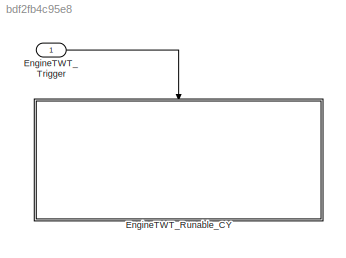
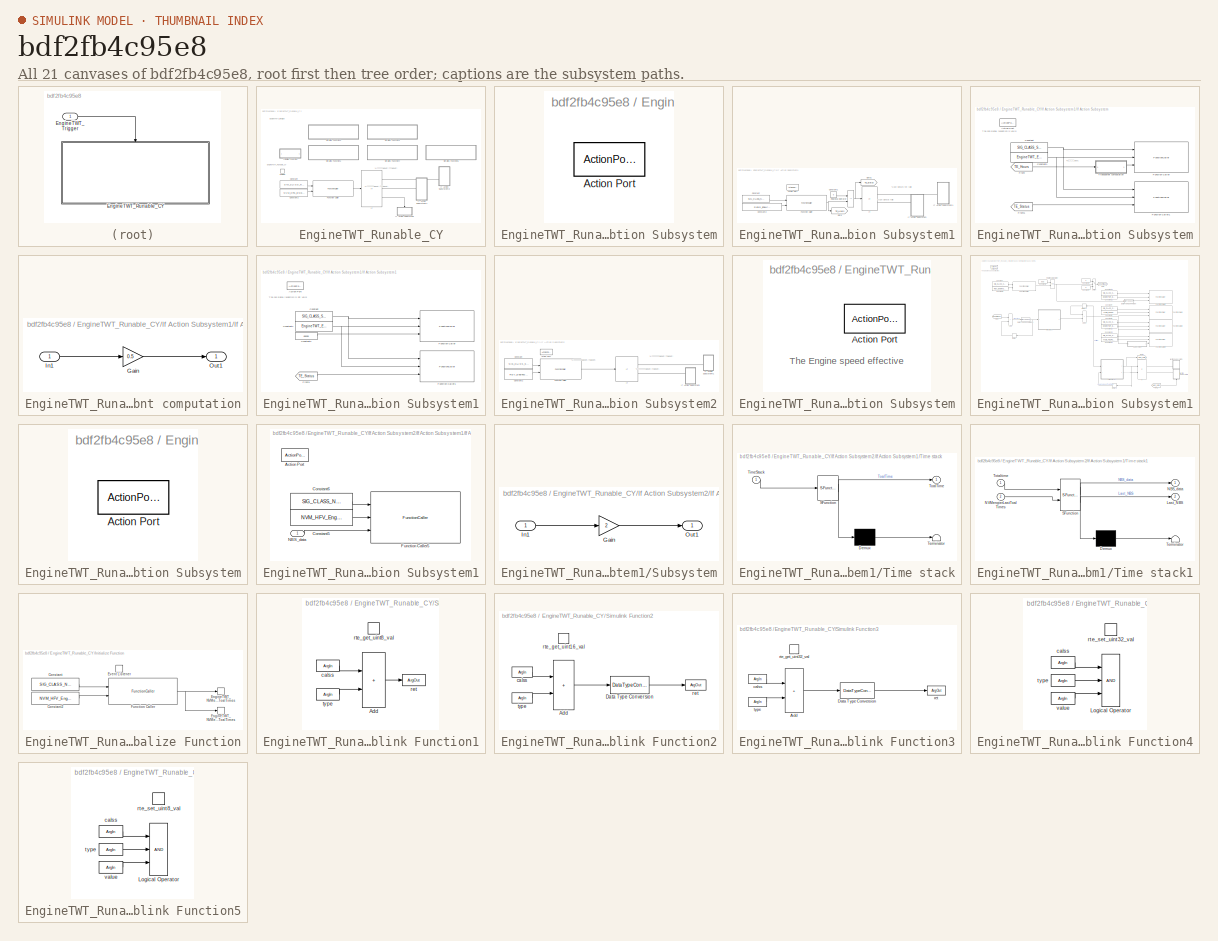
[diagram: thumbnail index - all 21 canvases of the model, root first then tree order]
MODEL slx_bdf2fb4c95e8
KIND model
CONFIG AbsTol = auto
CONFIG EnableMultiTasking = off
CONFIG FixedStep = 0.005
CONFIG MaxStep = auto
CONFIG MinStep = auto
CONFIG RelTol = 1e-3
CONFIG SampleTimeConstraint = Unconstrained
CONFIG SolverName = FixedStepDiscrete
CONFIG StartTime = 0.0
CONFIG StopTime = inf
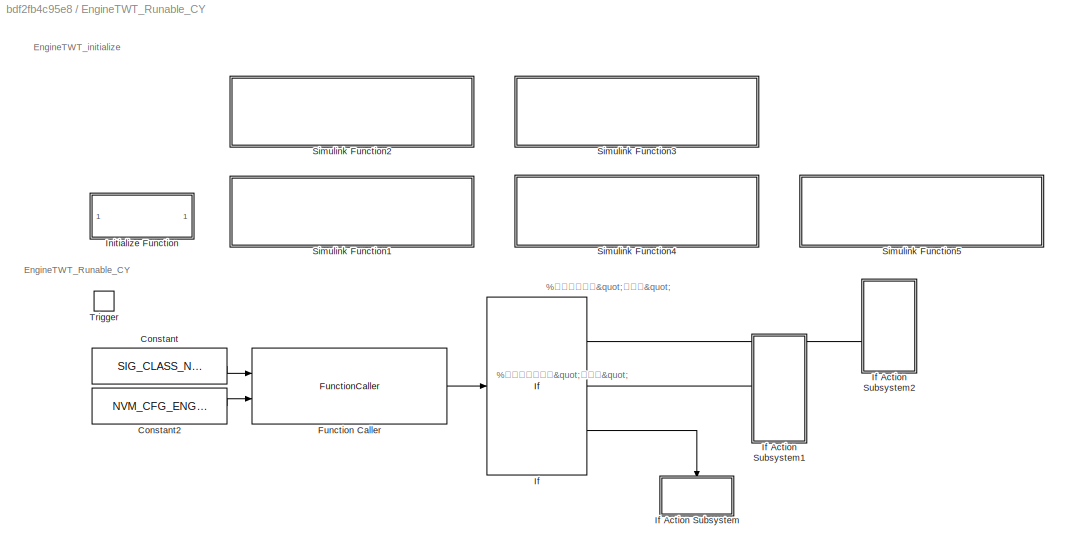
BLOCK [SubSystem] EngineTWT_Runable_CY
  Ports = [0, 0, 0, 1]
  RequestExecContextInheritance = off
BLOCK [Constant] EngineTWT_Runable_CY/Constant
  OutDataTypeStr = int8
  Value = SIG_CLASS_NVM_CFG
BLOCK [Constant] EngineTWT_Runable_CY/Constant2
  OutDataTypeStr = int8
  Value = NVM_CFG_ENG_TYPE
BLOCK [FunctionCaller] EngineTWT_Runable_CY/Function Caller
  FunctionPrototype = ret = rte_get_uint16_val(calss,type)
  InputArgumentSpecifications = int8(1),int8(1)
  OutputArgumentSpecifications = int16(1)
  Ports = [2, 1]
BLOCK [If] EngineTWT_Runable_CY/If
  ElseIfExpressions = u1 == 213
  IfExpression = u1 == 214
  Ports = [1, 3]
BLOCK [SubSystem] EngineTWT_Runable_CY/If Action Subsystem
  Ports = [0, 0, 0, 0, 0, 0, 0, 1]
  RequestExecContextInheritance = off
  TreatAsAtomicUnit = on
BLOCK [ActionPort] EngineTWT_Runable_CY/If Action Subsystem/Action Port
  ActionPortLabel = else
BLOCK [SubSystem] EngineTWT_Runable_CY/If Action Subsystem1
  NameLocation = right
  Ports = [0, 0, 0, 0, 0, 0, 0, 1]
  RequestExecContextInheritance = off
  TreatAsAtomicUnit = on
BLOCK [ActionPort] EngineTWT_Runable_CY/If Action Subsystem1/Action Port
  ActionPortLabel = elseif(u1 == 213)
BLOCK [Constant] EngineTWT_Runable_CY/If Action Subsystem1/Constant
  OutDataTypeStr = int8
  Value = SIG_CLASS_NVM_CFG
BLOCK [Constant] EngineTWT_Runable_CY/If Action Subsystem1/Constant1
  Value = 0
BLOCK [Constant] EngineTWT_Runable_CY/If Action Subsystem1/Constant2
  OutDataTypeStr = int8
  Value = RXSIG_EngHrRev_Total_engine_hours
BLOCK [FunctionCaller] EngineTWT_Runable_CY/If Action Subsystem1/Function Caller
  FunctionPrototype = ret = rte_get_uint32_val(calss,type)
  InputArgumentSpecifications = int8(1),int8(1)
  OutputArgumentSpecifications = int32(1)
  Ports = [2, 1]
BLOCK [Goto] EngineTWT_Runable_CY/If Action Subsystem1/Goto
  GotoTag = TE_Hours
BLOCK [Goto] EngineTWT_Runable_CY/If Action Subsystem1/Goto1
  GotoTag = TE_Status
BLOCK [If] EngineTWT_Runable_CY/If Action Subsystem1/If
  IfExpression = u1 == 0
  Ports = [1, 2]
BLOCK [SubSystem] EngineTWT_Runable_CY/If Action Subsystem1/If Action Subsystem
  NameLocation = right
  Ports = [0, 0, 0, 0, 0, 0, 0, 1]
  RequestExecContextInheritance = off
  TreatAsAtomicUnit = on
BLOCK [ActionPort] EngineTWT_Runable_CY/If Action Subsystem1/If Action Subsystem/Action Port
  ActionPortLabel = else
BLOCK [Constant] EngineTWT_Runable_CY/If Action Subsystem1/If Action Subsystem/Constant
  OutDataTypeStr = int8
  Value = SIG_CLASS_SWC
BLOCK [Constant] EngineTWT_Runable_CY/If Action Subsystem1/If Action Subsystem/Constant1
  OutDataTypeStr = int16
  Value = EngineTWT_Enginerunhours
BLOCK [From] EngineTWT_Runable_CY/If Action Subsystem1/If Action Subsystem/From
  GotoTag = TE_Hours
BLOCK [From] EngineTWT_Runable_CY/If Action Subsystem1/If Action Subsystem/From1
  GotoTag = TE_Status
BLOCK [FunctionCaller] EngineTWT_Runable_CY/If Action Subsystem1/If Action Subsystem/Function Caller
  FunctionPrototype = rte_set_uint32_val(calss,type,value)
  InputArgumentSpecifications = int8(1),int16(1),int32(1)
  Ports = [3]
BLOCK [FunctionCaller] EngineTWT_Runable_CY/If Action Subsystem1/If Action Subsystem/Function Caller1
  FunctionPrototype = rte_set_uint32_val(calss,type,value)
  InputArgumentSpecifications = int8(1),int16(1),int32(1)
  Ports = [3]
BLOCK [SubSystem] EngineTWT_Runable_CY/If Action Subsystem1/If Action Subsystem/Transparent computation
  Ports = [1, 1]
  RequestExecContextInheritance = off
BLOCK [Gain] EngineTWT_Runable_CY/If Action Subsystem1/If Action Subsystem/Transparent computation/Gain
  Gain = 0.5
  OutDataTypeStr = int32
  ParamDataTypeStr = int32
BLOCK [Inport] EngineTWT_Runable_CY/If Action Subsystem1/If Action Subsystem/Transparent computation/In1
BLOCK [Outport] EngineTWT_Runable_CY/If Action Subsystem1/If Action Subsystem/Transparent computation/Out1
BLOCK [SubSystem] EngineTWT_Runable_CY/If Action Subsystem1/If Action Subsystem1
  NameLocation = right
  Ports = [0, 0, 0, 0, 0, 0, 0, 1]
  RequestExecContextInheritance = off
  TreatAsAtomicUnit = on
BLOCK [ActionPort] EngineTWT_Runable_CY/If Action Subsystem1/If Action Subsystem1/Action Port
  ActionPortLabel = if(u1 == 0)
BLOCK [Constant] EngineTWT_Runable_CY/If Action Subsystem1/If Action Subsystem1/Constant
  OutDataTypeStr = int8
  Value = SIG_CLASS_SWC
BLOCK [Constant] EngineTWT_Runable_CY/If Action Subsystem1/If Action Subsystem1/Constant1
  OutDataTypeStr = int16
  Value = EngineTWT_Enginerunhours
BLOCK [Constant] EngineTWT_Runable_CY/If Action Subsystem1/If Action Subsystem1/Constant2
  OutDataTypeStr = int32
  Value = 65535
BLOCK [From] EngineTWT_Runable_CY/If Action Subsystem1/If Action Subsystem1/From1
  GotoTag = TE_Status
BLOCK [FunctionCaller] EngineTWT_Runable_CY/If Action Subsystem1/If Action Subsystem1/Function Caller
  FunctionPrototype = rte_set_uint32_val(calss,type,value)
  InputArgumentSpecifications = int8(1),int16(1),int32(1)
  Ports = [3]
BLOCK [FunctionCaller] EngineTWT_Runable_CY/If Action Subsystem1/If Action Subsystem1/Function Caller1
  FunctionPrototype = rte_set_uint8_val(calss,type,value)
  InputArgumentSpecifications = int8(1),int16(1),int8(1)
  Ports = [3]
BLOCK [RelationalOperator] EngineTWT_Runable_CY/If Action Subsystem1/Relational Operator
  InputSameDT = off
  Operator = ~=
  OutDataTypeStr = boolean
  Ports = [2, 1]
  RndMeth = Simplest
BLOCK [SubSystem] EngineTWT_Runable_CY/If Action Subsystem2
  NameLocation = right
  Ports = [0, 0, 0, 0, 0, 0, 0, 1]
  RequestExecContextInheritance = off
  TreatAsAtomicUnit = on
BLOCK [ActionPort] EngineTWT_Runable_CY/If Action Subsystem2/Action Port
  ActionPortLabel = if(u1 == 214)
BLOCK [Constant] EngineTWT_Runable_CY/If Action Subsystem2/Constant
  OutDataTypeStr = int8
  Value = SIG_CLASS_SWC
BLOCK [Constant] EngineTWT_Runable_CY/If Action Subsystem2/Constant2
  OutDataTypeStr = int8
  Value = REV_EngineSpeedState
BLOCK [FunctionCaller] EngineTWT_Runable_CY/If Action Subsystem2/Function Caller
  FunctionPrototype = ret = rte_get_uint8_val(calss,type)
  InputArgumentSpecifications = int8(1),int8(1)
  OutputArgumentSpecifications = int8(1)
  Ports = [2, 1]
BLOCK [If] EngineTWT_Runable_CY/If Action Subsystem2/If
  IfExpression = u1 == 1
  Ports = [1, 2]
BLOCK [SubSystem] EngineTWT_Runable_CY/If Action Subsystem2/If Action Subsystem
  NameLocation = right
  Ports = [0, 0, 0, 0, 0, 0, 0, 1]
  RequestExecContextInheritance = off
  TreatAsAtomicUnit = on
BLOCK [ActionPort] EngineTWT_Runable_CY/If Action Subsystem2/If Action Subsystem/Action Port
  ActionPortLabel = else
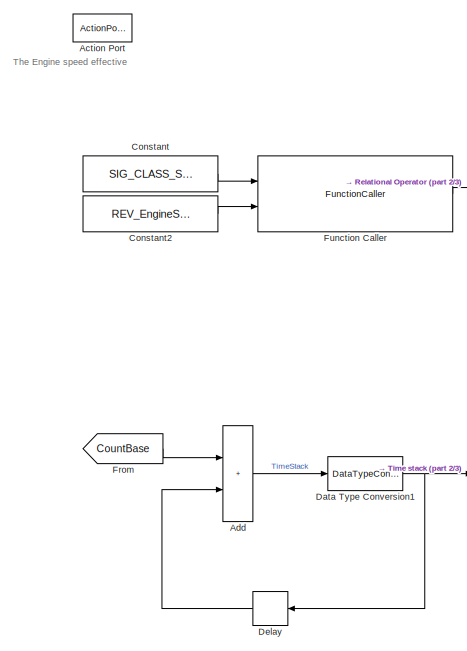
[diagram: EngineTWT_Runable_CY/If Action Subsystem2/If Action Subsystem1 - part 1/3, top left region]
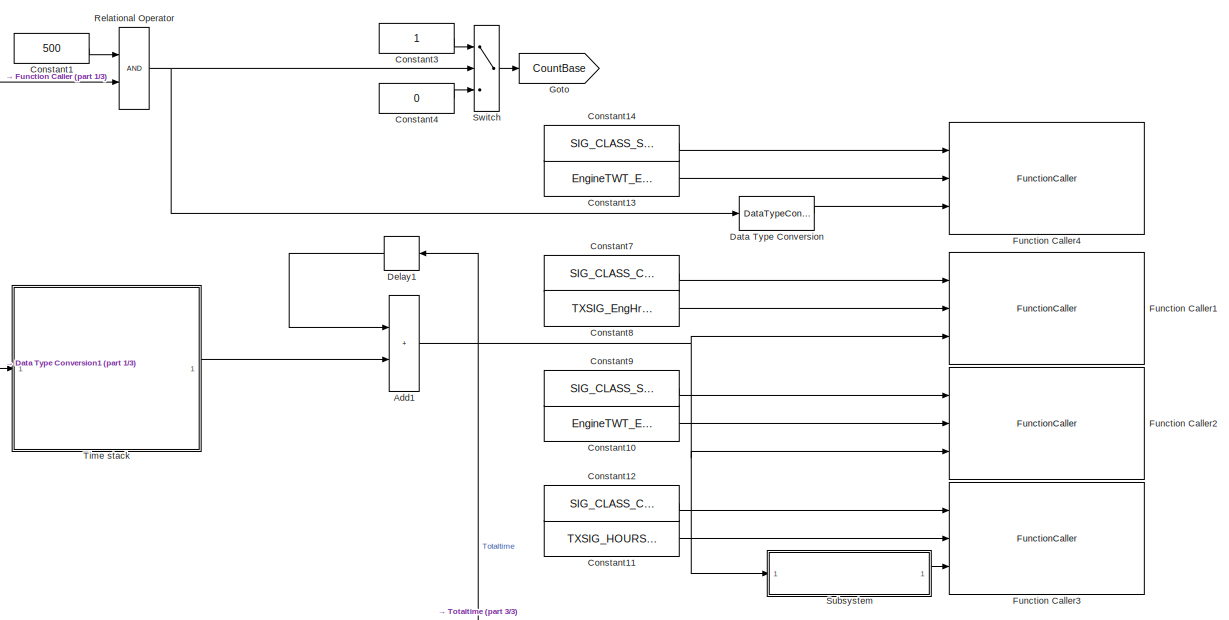
[diagram: EngineTWT_Runable_CY/If Action Subsystem2/If Action Subsystem1 - part 2/3, central region]
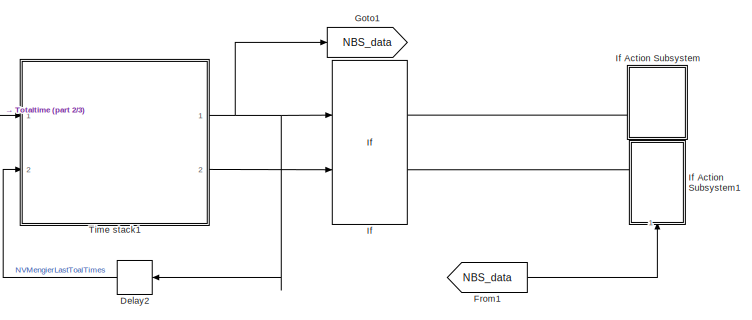
[diagram: EngineTWT_Runable_CY/If Action Subsystem2/If Action Subsystem1 - part 3/3, bottom right region]
BLOCK [SubSystem] EngineTWT_Runable_CY/If Action Subsystem2/If Action Subsystem1
  NameLocation = right
  Ports = [0, 0, 0, 0, 0, 0, 0, 1]
  RequestExecContextInheritance = off
  TreatAsAtomicUnit = on
BLOCK [ActionPort] EngineTWT_Runable_CY/If Action Subsystem2/If Action Subsystem1/Action Port
  ActionPortLabel = if(u1 == 1)
BLOCK [Sum] EngineTWT_Runable_CY/If Action Subsystem2/If Action Subsystem1/Add
  IconShape = rectangular
  Ports = [2, 1]
BLOCK [Sum] EngineTWT_Runable_CY/If Action Subsystem2/If Action Subsystem1/Add1
  IconShape = rectangular
  Ports = [2, 1]
BLOCK [Constant] EngineTWT_Runable_CY/If Action Subsystem2/If Action Subsystem1/Constant
  OutDataTypeStr = int8
  Value = SIG_CLASS_SWC
BLOCK [Constant] EngineTWT_Runable_CY/If Action Subsystem2/If Action Subsystem1/Constant1
  Value = 500
BLOCK [Constant] EngineTWT_Runable_CY/If Action Subsystem2/If Action Subsystem1/Constant10
  OutDataTypeStr = int16
  Value = EngineTWT_Enginerunhours
BLOCK [Constant] EngineTWT_Runable_CY/If Action Subsystem2/If Action Subsystem1/Constant11
  OutDataTypeStr = int16
  Value = TXSIG_HOURS_EGR_EngineTotalHoursofOperation
BLOCK [Constant] EngineTWT_Runable_CY/If Action Subsystem2/If Action Subsystem1/Constant12
  OutDataTypeStr = int8
  Value = SIG_CLASS_COMTX
BLOCK [Constant] EngineTWT_Runable_CY/If Action Subsystem2/If Action Subsystem1/Constant13
  OutDataTypeStr = int16
  Value = EngineTWT_EnginerunhoursState
BLOCK [Constant] EngineTWT_Runable_CY/If Action Subsystem2/If Action Subsystem1/Constant14
  OutDataTypeStr = int8
  Value = SIG_CLASS_SWC
BLOCK [Constant] EngineTWT_Runable_CY/If Action Subsystem2/If Action Subsystem1/Constant2
  OutDataTypeStr = int8
  Value = REV_EngineSpeed
BLOCK [Constant] EngineTWT_Runable_CY/If Action Subsystem2/If Action Subsystem1/Constant3
BLOCK [Constant] EngineTWT_Runable_CY/If Action Subsystem2/If Action Subsystem1/Constant4
  Value = 0
BLOCK [Constant] EngineTWT_Runable_CY/If Action Subsystem2/If Action Subsystem1/Constant7
  OutDataTypeStr = int8
  Value = SIG_CLASS_COMTX
BLOCK [Constant] EngineTWT_Runable_CY/If Action Subsystem2/If Action Subsystem1/Constant8
  OutDataTypeStr = int16
  Value = TXSIG_EngHrRev_EGR_Total_engine_hours
BLOCK [Constant] EngineTWT_Runable_CY/If Action Subsystem2/If Action Subsystem1/Constant9
  OutDataTypeStr = int8
  Value = SIG_CLASS_SWC
BLOCK [DataTypeConversion] EngineTWT_Runable_CY/If Action Subsystem2/If Action Subsystem1/Data Type Conversion
  OutDataTypeStr = int8
  RndMeth = Floor
  SaturateOnIntegerOverflow = off
BLOCK [DataTypeConversion] EngineTWT_Runable_CY/If Action Subsystem2/If Action Subsystem1/Data Type Conversion1
  OutDataTypeStr = uint8
  RndMeth = Floor
  SaturateOnIntegerOverflow = off
BLOCK [Delay] EngineTWT_Runable_CY/If Action Subsystem2/If Action Subsystem1/Delay
  DelayLength = 1
  InputPortMap = u0
  NameLocation = top
  Ports = [1, 1]
BLOCK [Delay] EngineTWT_Runable_CY/If Action Subsystem2/If Action Subsystem1/Delay1
  DelayLength = 1
  InputPortMap = u0
  NameLocation = top
  Ports = [1, 1]
  StateName = EngineTWT_NVMengierToalTimes
BLOCK [Delay] EngineTWT_Runable_CY/If Action Subsystem2/If Action Subsystem1/Delay2
  DelayLength = 1
  InputPortMap = u0
  NameLocation = top
  Ports = [1, 1]
  StateMustResolveToSignalObject = on
  StateName = EngineTWT_NVMengierLastToalTimes
BLOCK [From] EngineTWT_Runable_CY/If Action Subsystem2/If Action Subsystem1/From
  GotoTag = CountBase
BLOCK [From] EngineTWT_Runable_CY/If Action Subsystem2/If Action Subsystem1/From1
  GotoTag = NBS_data
BLOCK [FunctionCaller] EngineTWT_Runable_CY/If Action Subsystem2/If Action Subsystem1/Function Caller
  FunctionPrototype = ret = rte_get_uint16_val(calss,type)
  InputArgumentSpecifications = int8(1),int8(1)
  OutputArgumentSpecifications = int16(1)
  Ports = [2, 1]
BLOCK [FunctionCaller] EngineTWT_Runable_CY/If Action Subsystem2/If Action Subsystem1/Function Caller1
  FunctionPrototype = rte_set_uint32_val(calss,type,value)
  InputArgumentSpecifications = int8(1),int16(1),int32(1)
  Ports = [3]
BLOCK [FunctionCaller] EngineTWT_Runable_CY/If Action Subsystem2/If Action Subsystem1/Function Caller2
  FunctionPrototype = rte_set_uint32_val(calss,type,value)
  InputArgumentSpecifications = int8(1),int16(1),int32(1)
  Ports = [3]
BLOCK [FunctionCaller] EngineTWT_Runable_CY/If Action Subsystem2/If Action Subsystem1/Function Caller3
  FunctionPrototype = rte_set_uint32_val(calss,type,value)
  InputArgumentSpecifications = int8(1),int16(1),int32(1)
  Ports = [3]
BLOCK [FunctionCaller] EngineTWT_Runable_CY/If Action Subsystem2/If Action Subsystem1/Function Caller4
  FunctionPrototype = rte_set_uint8_val(calss,type,value)
  InputArgumentSpecifications = int8(1),int16(1),int8(1)
  Ports = [3]
BLOCK [Goto] EngineTWT_Runable_CY/If Action Subsystem2/If Action Subsystem1/Goto
  GotoTag = CountBase
BLOCK [Goto] EngineTWT_Runable_CY/If Action Subsystem2/If Action Subsystem1/Goto1
  GotoTag = NBS_data
BLOCK [If] EngineTWT_Runable_CY/If Action Subsystem2/If Action Subsystem1/If
  IfExpression = u1 == u2
  NumInputs = 2
  Ports = [2, 2]
BLOCK [SubSystem] EngineTWT_Runable_CY/If Action Subsystem2/If Action Subsystem1/If Action Subsystem
  NameLocation = right
  Ports = [0, 0, 0, 0, 0, 0, 0, 1]
  RequestExecContextInheritance = off
  TreatAsAtomicUnit = on
BLOCK [ActionPort] EngineTWT_Runable_CY/If Action Subsystem2/If Action Subsystem1/If Action Subsystem/Action Port
  ActionPortLabel = if(u1 == u2)
BLOCK [SubSystem] EngineTWT_Runable_CY/If Action Subsystem2/If Action Subsystem1/If Action Subsystem1
  NameLocation = right
  Ports = [1, 0, 0, 0, 0, 0, 0, 1]
  RequestExecContextInheritance = off
  TreatAsAtomicUnit = on
BLOCK [ActionPort] EngineTWT_Runable_CY/If Action Subsystem2/If Action Subsystem1/If Action Subsystem1/Action Port
  ActionPortLabel = else
BLOCK [Constant] EngineTWT_Runable_CY/If Action Subsystem2/If Action Subsystem1/If Action Subsystem1/Constant5
  OutDataTypeStr = int16
  Value = NVM_HFV_Enginerunhours
BLOCK [Constant] EngineTWT_Runable_CY/If Action Subsystem2/If Action Subsystem1/If Action Subsystem1/Constant6
  OutDataTypeStr = int8
  Value = SIG_CLASS_NVM
BLOCK [FunctionCaller] EngineTWT_Runable_CY/If Action Subsystem2/If Action Subsystem1/If Action Subsystem1/Function Caller5
  FunctionPrototype = rte_set_uint32_val(calss,type,value)
  InputArgumentSpecifications = int8(1),int16(1),int32(1)
  Ports = [3]
BLOCK [Inport] EngineTWT_Runable_CY/If Action Subsystem2/If Action Subsystem1/If Action Subsystem1/NBS_data
BLOCK [RelationalOperator] EngineTWT_Runable_CY/If Action Subsystem2/If Action Subsystem1/Relational Operator
  InputSameDT = off
  OutDataTypeStr = boolean
  Ports = [2, 1]
  RndMeth = Simplest
BLOCK [SubSystem] EngineTWT_Runable_CY/If Action Subsystem2/If Action Subsystem1/Subsystem
  Ports = [1, 1]
  RequestExecContextInheritance = off
BLOCK [Gain] EngineTWT_Runable_CY/If Action Subsystem2/If Action Subsystem1/Subsystem/Gain
  Gain = 2
  OutDataTypeStr = int32
BLOCK [Inport] EngineTWT_Runable_CY/If Action Subsystem2/If Action Subsystem1/Subsystem/In1
BLOCK [Outport] EngineTWT_Runable_CY/If Action Subsystem2/If Action Subsystem1/Subsystem/Out1
BLOCK [Switch] EngineTWT_Runable_CY/If Action Subsystem2/If Action Subsystem1/Switch
  Criteria = u2 ~= 0
  InputSameDT = off
  SaturateOnIntegerOverflow = off
BLOCK [SubSystem] EngineTWT_Runable_CY/If Action Subsystem2/If Action Subsystem1/Time stack
  ErrorFcn = Stateflow.Translate.translate
  PermitHierarchicalResolution = ExplicitOnly
  Ports = [1, 1]
  RequestExecContextInheritance = off
  SFBlockType = Chart
  TreatAsAtomicUnit = on
BLOCK [Demux] EngineTWT_Runable_CY/If Action Subsystem2/If Action Subsystem1/Time stack/ Demux 
  Outputs = 1
  Ports = [1, 1]
BLOCK [S-Function] EngineTWT_Runable_CY/If Action Subsystem2/If Action Subsystem1/Time stack/ SFunction 
  EnableBusSupport = on
  FunctionName = sf_sfun
  PortCounts = [1 2]
  Ports = [1, 2]
  SFcnIsStateOwnerBlock = off
  SFunctionDeploymentMode = off
  Tag = Stateflow S-Function 3
BLOCK [Terminator] EngineTWT_Runable_CY/If Action Subsystem2/If Action Subsystem1/Time stack/ Terminator 
BLOCK [Inport] EngineTWT_Runable_CY/If Action Subsystem2/If Action Subsystem1/Time stack/TimeStack
BLOCK [Outport] EngineTWT_Runable_CY/If Action Subsystem2/If Action Subsystem1/Time stack/ToalTime
BLOCK [SubSystem] EngineTWT_Runable_CY/If Action Subsystem2/If Action Subsystem1/Time stack1
  ErrorFcn = Stateflow.Translate.translate
  PermitHierarchicalResolution = ExplicitOnly
  Ports = [2, 2]
  RequestExecContextInheritance = off
  SFBlockType = Chart
  TreatAsAtomicUnit = on
BLOCK [Demux] EngineTWT_Runable_CY/If Action Subsystem2/If Action Subsystem1/Time stack1/ Demux 
  Outputs = 1
  Ports = [1, 1]
BLOCK [S-Function] EngineTWT_Runable_CY/If Action Subsystem2/If Action Subsystem1/Time stack1/ SFunction 
  EnableBusSupport = on
  FunctionName = sf_sfun
  PortCounts = [2 3]
  Ports = [2, 3]
  SFcnIsStateOwnerBlock = off
  SFunctionDeploymentMode = off
  Tag = Stateflow S-Function 4
BLOCK [Terminator] EngineTWT_Runable_CY/If Action Subsystem2/If Action Subsystem1/Time stack1/ Terminator 
BLOCK [Outport] EngineTWT_Runable_CY/If Action Subsystem2/If Action Subsystem1/Time stack1/Last_NBS
  Port = 2
BLOCK [Outport] EngineTWT_Runable_CY/If Action Subsystem2/If Action Subsystem1/Time stack1/NBS_data
BLOCK [Inport] EngineTWT_Runable_CY/If Action Subsystem2/If Action Subsystem1/Time stack1/NVMengierLastToalTimes
  Port = 2
BLOCK [Inport] EngineTWT_Runable_CY/If Action Subsystem2/If Action Subsystem1/Time stack1/Totaltime
BLOCK [SubSystem] EngineTWT_Runable_CY/Initialize Function
  Ports = []
  RequestExecContextInheritance = off
  TreatAsAtomicUnit = on
BLOCK [Constant] EngineTWT_Runable_CY/Initialize Function/Constant
  OutDataTypeStr = int8
  Value = SIG_CLASS_NVM
  VectorParams1D = off
BLOCK [Constant] EngineTWT_Runable_CY/Initialize Function/Constant2
  OutDataTypeStr = int8
  Value = NVM_HFV_Enginerunhours
BLOCK [StateWriter] EngineTWT_Runable_CY/Initialize Function/EngineTWT_NVMengierLastToalTimes
  StateName = EngineTWT_NVMengierLastToalTimes
  StateOwnerBlock = ../../If Action Subsystem2/If Action Subsystem1/Delay2
BLOCK [StateWriter] EngineTWT_Runable_CY/Initialize Function/EngineTWT_NVMengierToalTimes
  StateName = EngineTWT_NVMengierToalTimes
  StateOwnerBlock = ../../If Action Subsystem2/If Action Subsystem1/Delay1
BLOCK [EventListener] EngineTWT_Runable_CY/Initialize Function/Event Listener
  DisableCoverage = on
  EventName = reset
BLOCK [FunctionCaller] EngineTWT_Runable_CY/Initialize Function/Function Caller
  FunctionPrototype = ret = rte_get_uint32_val(calss,type)
  InputArgumentSpecifications = int8(1),int8(1)
  OutputArgumentSpecifications = int32(1)
  Ports = [2, 1]
BLOCK [SubSystem] EngineTWT_Runable_CY/Simulink Function1
  Ports = [0, 0, 0, 1]
  RequestExecContextInheritance = off
  TreatAsAtomicUnit = on
BLOCK [Sum] EngineTWT_Runable_CY/Simulink Function1/Add
  IconShape = rectangular
  Ports = [2, 1]
BLOCK [ArgIn] EngineTWT_Runable_CY/Simulink Function1/calss
  ArgumentName = calss
  DisableCoverage = on
  OutDataTypeStr = int8
BLOCK [ArgOut] EngineTWT_Runable_CY/Simulink Function1/ret
  ArgumentName = ret
  DisableCoverage = on
  OutDataTypeStr = int8
BLOCK [TriggerPort] EngineTWT_Runable_CY/Simulink Function1/rte_get_uint8_val
  FunctionName = rte_get_uint8_val
  FunctionVisibility = scoped
  IsSimulinkFunction = on
  Ports = []
  StatesWhenEnabling = held
  TriggerType = function-call
  VariantControl = (inherit)
BLOCK [ArgIn] EngineTWT_Runable_CY/Simulink Function1/type
  ArgumentName = type
  OutDataTypeStr = int8
  Port = 2
BLOCK [SubSystem] EngineTWT_Runable_CY/Simulink Function2
  Ports = [0, 0, 0, 1]
  RequestExecContextInheritance = off
  TreatAsAtomicUnit = on
BLOCK [Sum] EngineTWT_Runable_CY/Simulink Function2/Add
  IconShape = rectangular
  Ports = [2, 1]
BLOCK [DataTypeConversion] EngineTWT_Runable_CY/Simulink Function2/Data Type Conversion
  OutDataTypeStr = int16
  RndMeth = Floor
  SaturateOnIntegerOverflow = off
BLOCK [ArgIn] EngineTWT_Runable_CY/Simulink Function2/calss
  ArgumentName = calss
  DisableCoverage = on
  OutDataTypeStr = int8
BLOCK [ArgOut] EngineTWT_Runable_CY/Simulink Function2/ret
  ArgumentName = ret
  DisableCoverage = on
  OutDataTypeStr = int16
BLOCK [TriggerPort] EngineTWT_Runable_CY/Simulink Function2/rte_get_uint16_val
  FunctionName = rte_get_uint16_val
  FunctionVisibility = scoped
  IsSimulinkFunction = on
  Ports = []
  StatesWhenEnabling = held
  TriggerType = function-call
  VariantControl = (inherit)
BLOCK [ArgIn] EngineTWT_Runable_CY/Simulink Function2/type
  ArgumentName = type
  OutDataTypeStr = int8
  Port = 2
BLOCK [SubSystem] EngineTWT_Runable_CY/Simulink Function3
  Ports = [0, 0, 0, 1]
  RequestExecContextInheritance = off
  TreatAsAtomicUnit = on
BLOCK [Sum] EngineTWT_Runable_CY/Simulink Function3/Add
  IconShape = rectangular
  Ports = [2, 1]
BLOCK [DataTypeConversion] EngineTWT_Runable_CY/Simulink Function3/Data Type Conversion
  OutDataTypeStr = int32
  RndMeth = Floor
  SaturateOnIntegerOverflow = off
BLOCK [ArgIn] EngineTWT_Runable_CY/Simulink Function3/calss
  ArgumentName = calss
  DisableCoverage = on
  OutDataTypeStr = int8
BLOCK [ArgOut] EngineTWT_Runable_CY/Simulink Function3/ret
  ArgumentName = ret
  DisableCoverage = on
  OutDataTypeStr = int32
BLOCK [TriggerPort] EngineTWT_Runable_CY/Simulink Function3/rte_get_uint32_val
  FunctionName = rte_get_uint32_val
  FunctionVisibility = scoped
  IsSimulinkFunction = on
  Ports = []
  StatesWhenEnabling = held
  TriggerType = function-call
  VariantControl = (inherit)
BLOCK [ArgIn] EngineTWT_Runable_CY/Simulink Function3/type
  ArgumentName = type
  OutDataTypeStr = int8
  Port = 2
BLOCK [SubSystem] EngineTWT_Runable_CY/Simulink Function4
  Ports = [0, 0, 0, 1]
  RequestExecContextInheritance = off
  TreatAsAtomicUnit = on
BLOCK [Logic] EngineTWT_Runable_CY/Simulink Function4/Logical Operator
  AllPortsSameDT = off
  Inputs = 3
  OutDataTypeStr = boolean
  Ports = [3, 1]
BLOCK [ArgIn] EngineTWT_Runable_CY/Simulink Function4/calss
  ArgumentName = calss
  DisableCoverage = on
  OutDataTypeStr = int8
BLOCK [TriggerPort] EngineTWT_Runable_CY/Simulink Function4/rte_set_uint32_val
  FunctionName = rte_set_uint32_val
  FunctionVisibility = scoped
  IsSimulinkFunction = on
  Ports = []
  StatesWhenEnabling = held
  TriggerType = function-call
  VariantControl = (inherit)
BLOCK [ArgIn] EngineTWT_Runable_CY/Simulink Function4/type
  ArgumentName = type
  OutDataTypeStr = int16
  Port = 2
BLOCK [ArgIn] EngineTWT_Runable_CY/Simulink Function4/value
  ArgumentName = value
  OutDataTypeStr = int32
  Port = 3
BLOCK [SubSystem] EngineTWT_Runable_CY/Simulink Function5
  Ports = [0, 0, 0, 1]
  RequestExecContextInheritance = off
  TreatAsAtomicUnit = on
BLOCK [Logic] EngineTWT_Runable_CY/Simulink Function5/Logical Operator
  AllPortsSameDT = off
  Inputs = 3
  OutDataTypeStr = boolean
  Ports = [3, 1]
BLOCK [ArgIn] EngineTWT_Runable_CY/Simulink Function5/calss
  ArgumentName = calss
  DisableCoverage = on
  OutDataTypeStr = int8
BLOCK [TriggerPort] EngineTWT_Runable_CY/Simulink Function5/rte_set_uint8_val
  FunctionName = rte_set_uint8_val
  FunctionVisibility = scoped
  IsSimulinkFunction = on
  Ports = []
  StatesWhenEnabling = held
  TriggerType = function-call
  VariantControl = (inherit)
BLOCK [ArgIn] EngineTWT_Runable_CY/Simulink Function5/type
  ArgumentName = type
  OutDataTypeStr = int16
  Port = 2
BLOCK [ArgIn] EngineTWT_Runable_CY/Simulink Function5/value
  ArgumentName = value
  OutDataTypeStr = int8
  Port = 3
BLOCK [TriggerPort] EngineTWT_Runable_CY/Trigger
  PortDimensions = 1
  Ports = []
  SampleTime = 0.01
  SampleTimeType = periodic
  StatesWhenEnabling = held
  TriggerType = function-call
  VariantControl = (inherit)
BLOCK [Inport] EngineTWT_Trigger
  OutputFunctionCall = on
  SampleTime = 0.01
ANNOTATION EngineTWT_Runable_CY: % 发送机类型不是" 康明斯 "
ANNOTATION EngineTWT_Runable_CY: % 发送机类型是" 康明斯 "
ANNOTATION EngineTWT_Runable_CY: EngineTWT_Runable_CY
ANNOTATION EngineTWT_Runable_CY: EngineTWT_initialize
ANNOTATION EngineTWT_Runable_CY/If Action Subsystem1: %Can signal is not valid
ANNOTATION EngineTWT_Runable_CY/If Action Subsystem1: %Can signal is valid
ANNOTATION EngineTWT_Runable_CY/If Action Subsystem1/If Action Subsystem: %透传到 swc
ANNOTATION EngineTWT_Runable_CY/If Action Subsystem1/If Action Subsystem: The can signal reception is valid
ANNOTATION EngineTWT_Runable_CY/If Action Subsystem1/If Action Subsystem1: The can signal reception is not valid
ANNOTATION EngineTWT_Runable_CY/If Action Subsystem2: %发动机转速状态是 "无效"
ANNOTATION EngineTWT_Runable_CY/If Action Subsystem2: %发动机转速状态是 "有效"
ANNOTATION EngineTWT_Runable_CY/If Action Subsystem2: %发动机转速状态是否 "有效"
ANNOTATION EngineTWT_Runable_CY/If Action Subsystem2/If Action Subsystem: The Engine speed effective
ANNOTATION EngineTWT_Runable_CY/If Action Subsystem2/If Action Subsystem1: The Engine speed effective
LINE EngineTWT_Runable_CY/Constant2:1 -> EngineTWT_Runable_CY/Function Caller:2
LINE EngineTWT_Runable_CY/Constant:1 -> EngineTWT_Runable_CY/Function Caller:1
LINE EngineTWT_Runable_CY/Function Caller:1 -> EngineTWT_Runable_CY/If:1
LINE EngineTWT_Runable_CY/If Action Subsystem1/Constant1:1 -> EngineTWT_Runable_CY/If Action Subsystem1/Relational Operator:1
LINE EngineTWT_Runable_CY/If Action Subsystem1/Constant2:1 -> EngineTWT_Runable_CY/If Action Subsystem1/Function Caller:2
LINE EngineTWT_Runable_CY/If Action Subsystem1/Constant:1 -> EngineTWT_Runable_CY/If Action Subsystem1/Function Caller:1
NET EngineTWT_Runable_CY/If Action Subsystem1/Function Caller:1 -> EngineTWT_Runable_CY/If Action Subsystem1/Goto:1, EngineTWT_Runable_CY/If Action Subsystem1/Relational Operator:2
NET EngineTWT_Runable_CY/If Action Subsystem1/If Action Subsystem/Constant1:1 -> EngineTWT_Runable_CY/If Action Subsystem1/If Action Subsystem/Function Caller1:2, EngineTWT_Runable_CY/If Action Subsystem1/If Action Subsystem/Function Caller:2
NET EngineTWT_Runable_CY/If Action Subsystem1/If Action Subsystem/Constant:1 -> EngineTWT_Runable_CY/If Action Subsystem1/If Action Subsystem/Function Caller1:1, EngineTWT_Runable_CY/If Action Subsystem1/If Action Subsystem/Function Caller:1
LINE EngineTWT_Runable_CY/If Action Subsystem1/If Action Subsystem/From1:1 -> EngineTWT_Runable_CY/If Action Subsystem1/If Action Subsystem/Function Caller1:3
LINE EngineTWT_Runable_CY/If Action Subsystem1/If Action Subsystem/From:1 -> EngineTWT_Runable_CY/If Action Subsystem1/If Action Subsystem/Transparent computation:1
LINE EngineTWT_Runable_CY/If Action Subsystem1/If Action Subsystem/Transparent computation/Gain:1 -> EngineTWT_Runable_CY/If Action Subsystem1/If Action Subsystem/Transparent computation/Out1:1
LINE EngineTWT_Runable_CY/If Action Subsystem1/If Action Subsystem/Transparent computation/In1:1 -> EngineTWT_Runable_CY/If Action Subsystem1/If Action Subsystem/Transparent computation/Gain:1
LINE EngineTWT_Runable_CY/If Action Subsystem1/If Action Subsystem/Transparent computation:1 -> EngineTWT_Runable_CY/If Action Subsystem1/If Action Subsystem/Function Caller:3
NET EngineTWT_Runable_CY/If Action Subsystem1/If Action Subsystem1/Constant1:1 -> EngineTWT_Runable_CY/If Action Subsystem1/If Action Subsystem1/Function Caller1:2, EngineTWT_Runable_CY/If Action Subsystem1/If Action Subsystem1/Function Caller:2
LINE EngineTWT_Runable_CY/If Action Subsystem1/If Action Subsystem1/Constant2:1 -> EngineTWT_Runable_CY/If Action Subsystem1/If Action Subsystem1/Function Caller:3
NET EngineTWT_Runable_CY/If Action Subsystem1/If Action Subsystem1/Constant:1 -> EngineTWT_Runable_CY/If Action Subsystem1/If Action Subsystem1/Function Caller1:1, EngineTWT_Runable_CY/If Action Subsystem1/If Action Subsystem1/Function Caller:1
LINE EngineTWT_Runable_CY/If Action Subsystem1/If Action Subsystem1/From1:1 -> EngineTWT_Runable_CY/If Action Subsystem1/If Action Subsystem1/Function Caller1:3
LINE EngineTWT_Runable_CY/If Action Subsystem1/If:1 -> EngineTWT_Runable_CY/If Action Subsystem1/If Action Subsystem1:ifaction
LINE EngineTWT_Runable_CY/If Action Subsystem1/If:2 -> EngineTWT_Runable_CY/If Action Subsystem1/If Action Subsystem:ifaction
NET EngineTWT_Runable_CY/If Action Subsystem1/Relational Operator:1 -> EngineTWT_Runable_CY/If Action Subsystem1/Goto1:1, EngineTWT_Runable_CY/If Action Subsystem1/If:1
LINE EngineTWT_Runable_CY/If Action Subsystem2/Constant2:1 -> EngineTWT_Runable_CY/If Action Subsystem2/Function Caller:2
LINE EngineTWT_Runable_CY/If Action Subsystem2/Constant:1 -> EngineTWT_Runable_CY/If Action Subsystem2/Function Caller:1
LINE EngineTWT_Runable_CY/If Action Subsystem2/Function Caller:1 -> EngineTWT_Runable_CY/If Action Subsystem2/If:1
NET EngineTWT_Runable_CY/If Action Subsystem2/If Action Subsystem1/Add1:1 -> EngineTWT_Runable_CY/If Action Subsystem2/If Action Subsystem1/Delay1:1, EngineTWT_Runable_CY/If Action Subsystem2/If Action Subsystem1/Function Caller1:3, EngineTWT_Runable_CY/If Action Subsystem2/If Action Subsystem1/Function Caller2:3, EngineTWT_Runable_CY/If Action Subsystem2/If Action Subsystem1/Subsystem:1, EngineTWT_Runable_CY/If Action Subsystem2/If Action Subsystem1/Time stack1:1
LINE EngineTWT_Runable_CY/If Action Subsystem2/If Action Subsystem1/Add:1 -> EngineTWT_Runable_CY/If Action Subsystem2/If Action Subsystem1/Data Type Conversion1:1
LINE EngineTWT_Runable_CY/If Action Subsystem2/If Action Subsystem1/Constant10:1 -> EngineTWT_Runable_CY/If Action Subsystem2/If Action Subsystem1/Function Caller2:2
LINE EngineTWT_Runable_CY/If Action Subsystem2/If Action Subsystem1/Constant11:1 -> EngineTWT_Runable_CY/If Action Subsystem2/If Action Subsystem1/Function Caller3:2
LINE EngineTWT_Runable_CY/If Action Subsystem2/If Action Subsystem1/Constant12:1 -> EngineTWT_Runable_CY/If Action Subsystem2/If Action Subsystem1/Function Caller3:1
LINE EngineTWT_Runable_CY/If Action Subsystem2/If Action Subsystem1/Constant13:1 -> EngineTWT_Runable_CY/If Action Subsystem2/If Action Subsystem1/Function Caller4:2
LINE EngineTWT_Runable_CY/If Action Subsystem2/If Action Subsystem1/Constant14:1 -> EngineTWT_Runable_CY/If Action Subsystem2/If Action Subsystem1/Function Caller4:1
LINE EngineTWT_Runable_CY/If Action Subsystem2/If Action Subsystem1/Constant1:1 -> EngineTWT_Runable_CY/If Action Subsystem2/If Action Subsystem1/Relational Operator:1
LINE EngineTWT_Runable_CY/If Action Subsystem2/If Action Subsystem1/Constant2:1 -> EngineTWT_Runable_CY/If Action Subsystem2/If Action Subsystem1/Function Caller:2
LINE EngineTWT_Runable_CY/If Action Subsystem2/If Action Subsystem1/Constant3:1 -> EngineTWT_Runable_CY/If Action Subsystem2/If Action Subsystem1/Switch:1
LINE EngineTWT_Runable_CY/If Action Subsystem2/If Action Subsystem1/Constant4:1 -> EngineTWT_Runable_CY/If Action Subsystem2/If Action Subsystem1/Switch:3
LINE EngineTWT_Runable_CY/If Action Subsystem2/If Action Subsystem1/Constant7:1 -> EngineTWT_Runable_CY/If Action Subsystem2/If Action Subsystem1/Function Caller1:1
LINE EngineTWT_Runable_CY/If Action Subsystem2/If Action Subsystem1/Constant8:1 -> EngineTWT_Runable_CY/If Action Subsystem2/If Action Subsystem1/Function Caller1:2
LINE EngineTWT_Runable_CY/If Action Subsystem2/If Action Subsystem1/Constant9:1 -> EngineTWT_Runable_CY/If Action Subsystem2/If Action Subsystem1/Function Caller2:1
LINE EngineTWT_Runable_CY/If Action Subsystem2/If Action Subsystem1/Constant:1 -> EngineTWT_Runable_CY/If Action Subsystem2/If Action Subsystem1/Function Caller:1
NET EngineTWT_Runable_CY/If Action Subsystem2/If Action Subsystem1/Data Type Conversion1:1 -> EngineTWT_Runable_CY/If Action Subsystem2/If Action Subsystem1/Delay:1, EngineTWT_Runable_CY/If Action Subsystem2/If Action Subsystem1/Time stack:1
LINE EngineTWT_Runable_CY/If Action Subsystem2/If Action Subsystem1/Data Type Conversion:1 -> EngineTWT_Runable_CY/If Action Subsystem2/If Action Subsystem1/Function Caller4:3
LINE EngineTWT_Runable_CY/If Action Subsystem2/If Action Subsystem1/Delay1:1 -> EngineTWT_Runable_CY/If Action Subsystem2/If Action Subsystem1/Add1:1
LINE EngineTWT_Runable_CY/If Action Subsystem2/If Action Subsystem1/Delay2:1 -> EngineTWT_Runable_CY/If Action Subsystem2/If Action Subsystem1/Time stack1:2
LINE EngineTWT_Runable_CY/If Action Subsystem2/If Action Subsystem1/Delay:1 -> EngineTWT_Runable_CY/If Action Subsystem2/If Action Subsystem1/Add:2
LINE EngineTWT_Runable_CY/If Action Subsystem2/If Action Subsystem1/From1:1 -> EngineTWT_Runable_CY/If Action Subsystem2/If Action Subsystem1/If Action Subsystem1:1
LINE EngineTWT_Runable_CY/If Action Subsystem2/If Action Subsystem1/From:1 -> EngineTWT_Runable_CY/If Action Subsystem2/If Action Subsystem1/Add:1
LINE EngineTWT_Runable_CY/If Action Subsystem2/If Action Subsystem1/Function Caller:1 -> EngineTWT_Runable_CY/If Action Subsystem2/If Action Subsystem1/Relational Operator:2
LINE EngineTWT_Runable_CY/If Action Subsystem2/If Action Subsystem1/If Action Subsystem1/Constant5:1 -> EngineTWT_Runable_CY/If Action Subsystem2/If Action Subsystem1/If Action Subsystem1/Function Caller5:2
LINE EngineTWT_Runable_CY/If Action Subsystem2/If Action Subsystem1/If Action Subsystem1/Constant6:1 -> EngineTWT_Runable_CY/If Action Subsystem2/If Action Subsystem1/If Action Subsystem1/Function Caller5:1
LINE EngineTWT_Runable_CY/If Action Subsystem2/If Action Subsystem1/If Action Subsystem1/NBS_data:1 -> EngineTWT_Runable_CY/If Action Subsystem2/If Action Subsystem1/If Action Subsystem1/Function Caller5:3
LINE EngineTWT_Runable_CY/If Action Subsystem2/If Action Subsystem1/If:1 -> EngineTWT_Runable_CY/If Action Subsystem2/If Action Subsystem1/If Action Subsystem:ifaction
LINE EngineTWT_Runable_CY/If Action Subsystem2/If Action Subsystem1/If:2 -> EngineTWT_Runable_CY/If Action Subsystem2/If Action Subsystem1/If Action Subsystem1:ifaction
NET EngineTWT_Runable_CY/If Action Subsystem2/If Action Subsystem1/Relational Operator:1 -> EngineTWT_Runable_CY/If Action Subsystem2/If Action Subsystem1/Data Type Conversion:1, EngineTWT_Runable_CY/If Action Subsystem2/If Action Subsystem1/Switch:2
LINE EngineTWT_Runable_CY/If Action Subsystem2/If Action Subsystem1/Subsystem/Gain:1 -> EngineTWT_Runable_CY/If Action Subsystem2/If Action Subsystem1/Subsystem/Out1:1
LINE EngineTWT_Runable_CY/If Action Subsystem2/If Action Subsystem1/Subsystem/In1:1 -> EngineTWT_Runable_CY/If Action Subsystem2/If Action Subsystem1/Subsystem/Gain:1
LINE EngineTWT_Runable_CY/If Action Subsystem2/If Action Subsystem1/Subsystem:1 -> EngineTWT_Runable_CY/If Action Subsystem2/If Action Subsystem1/Function Caller3:3
LINE EngineTWT_Runable_CY/If Action Subsystem2/If Action Subsystem1/Switch:1 -> EngineTWT_Runable_CY/If Action Subsystem2/If Action Subsystem1/Goto:1
NET EngineTWT_Runable_CY/If Action Subsystem2/If Action Subsystem1/Time stack1:1 -> EngineTWT_Runable_CY/If Action Subsystem2/If Action Subsystem1/Delay2:1, EngineTWT_Runable_CY/If Action Subsystem2/If Action Subsystem1/Goto1:1, EngineTWT_Runable_CY/If Action Subsystem2/If Action Subsystem1/If:1
LINE EngineTWT_Runable_CY/If Action Subsystem2/If Action Subsystem1/Time stack1:2 -> EngineTWT_Runable_CY/If Action Subsystem2/If Action Subsystem1/If:2
LINE EngineTWT_Runable_CY/If Action Subsystem2/If Action Subsystem1/Time stack:1 -> EngineTWT_Runable_CY/If Action Subsystem2/If Action Subsystem1/Add1:2
LINE EngineTWT_Runable_CY/If Action Subsystem2/If:1 -> EngineTWT_Runable_CY/If Action Subsystem2/If Action Subsystem1:ifaction
LINE EngineTWT_Runable_CY/If Action Subsystem2/If:2 -> EngineTWT_Runable_CY/If Action Subsystem2/If Action Subsystem:ifaction
LINE EngineTWT_Runable_CY/If:1 -> EngineTWT_Runable_CY/If Action Subsystem2:ifaction
LINE EngineTWT_Runable_CY/If:2 -> EngineTWT_Runable_CY/If Action Subsystem1:ifaction
LINE EngineTWT_Runable_CY/If:3 -> EngineTWT_Runable_CY/If Action Subsystem:ifaction
LINE EngineTWT_Runable_CY/Initialize Function/Constant2:1 -> EngineTWT_Runable_CY/Initialize Function/Function Caller:2
LINE EngineTWT_Runable_CY/Initialize Function/Constant:1 -> EngineTWT_Runable_CY/Initialize Function/Function Caller:1
NET EngineTWT_Runable_CY/Initialize Function/Function Caller:1 -> EngineTWT_Runable_CY/Initialize Function/EngineTWT_NVMengierLastToalTimes:1, EngineTWT_Runable_CY/Initialize Function/EngineTWT_NVMengierToalTimes:1
LINE EngineTWT_Runable_CY/Simulink Function1/Add:1 -> EngineTWT_Runable_CY/Simulink Function1/ret:1
LINE EngineTWT_Runable_CY/Simulink Function1/calss:1 -> EngineTWT_Runable_CY/Simulink Function1/Add:1
LINE EngineTWT_Runable_CY/Simulink Function1/type:1 -> EngineTWT_Runable_CY/Simulink Function1/Add:2
LINE EngineTWT_Runable_CY/Simulink Function2/Add:1 -> EngineTWT_Runable_CY/Simulink Function2/Data Type Conversion:1
LINE EngineTWT_Runable_CY/Simulink Function2/Data Type Conversion:1 -> EngineTWT_Runable_CY/Simulink Function2/ret:1
LINE EngineTWT_Runable_CY/Simulink Function2/calss:1 -> EngineTWT_Runable_CY/Simulink Function2/Add:1
LINE EngineTWT_Runable_CY/Simulink Function2/type:1 -> EngineTWT_Runable_CY/Simulink Function2/Add:2
LINE EngineTWT_Runable_CY/Simulink Function3/Add:1 -> EngineTWT_Runable_CY/Simulink Function3/Data Type Conversion:1
LINE EngineTWT_Runable_CY/Simulink Function3/Data Type Conversion:1 -> EngineTWT_Runable_CY/Simulink Function3/ret:1
LINE EngineTWT_Runable_CY/Simulink Function3/calss:1 -> EngineTWT_Runable_CY/Simulink Function3/Add:1
LINE EngineTWT_Runable_CY/Simulink Function3/type:1 -> EngineTWT_Runable_CY/Simulink Function3/Add:2
LINE EngineTWT_Runable_CY/Simulink Function4/calss:1 -> EngineTWT_Runable_CY/Simulink Function4/Logical Operator:1
LINE EngineTWT_Runable_CY/Simulink Function4/type:1 -> EngineTWT_Runable_CY/Simulink Function4/Logical Operator:2
LINE EngineTWT_Runable_CY/Simulink Function4/value:1 -> EngineTWT_Runable_CY/Simulink Function4/Logical Operator:3
LINE EngineTWT_Runable_CY/Simulink Function5/calss:1 -> EngineTWT_Runable_CY/Simulink Function5/Logical Operator:1
LINE EngineTWT_Runable_CY/Simulink Function5/type:1 -> EngineTWT_Runable_CY/Simulink Function5/Logical Operator:2
LINE EngineTWT_Runable_CY/Simulink Function5/value:1 -> EngineTWT_Runable_CY/Simulink Function5/Logical Operator:3
LINE EngineTWT_Trigger:1 -> EngineTWT_Runable_CY:trigger
note: NET lines group one-source signal fan-out (src -> all destinations, sorted); 1:1 wires keep LINE
CHART EngineTWT_Runable_CY/If Action
Subsystem2/If Action
Subsystem1/Time stack states=2 transitions=3
  STATE_LABEL 'IDLE\nentry:  ToalTime = 0x00;\nduring:ToalTime  =0x00;'
  STATE_LABEL 'Add\nentry:  ToalTime = 0x01;Local_Time  =TimeStack;\nduring:ToalTime = 0x01;Local_Time  =TimeStack;'
CHART EngineTWT_Runable_CY/If Action
Subsystem2/If Action
Subsystem1/Time stack1 states=2 transitions=3
  STATE_LABEL 'IDLE\nduring:TimeCnt = TimeCnt+1;\n'
  STATE_LABEL 'start\nentry:NBS_data = Totaltime;'
CHART  states=0 transitions=0
CHART  states=0 transitions=0
